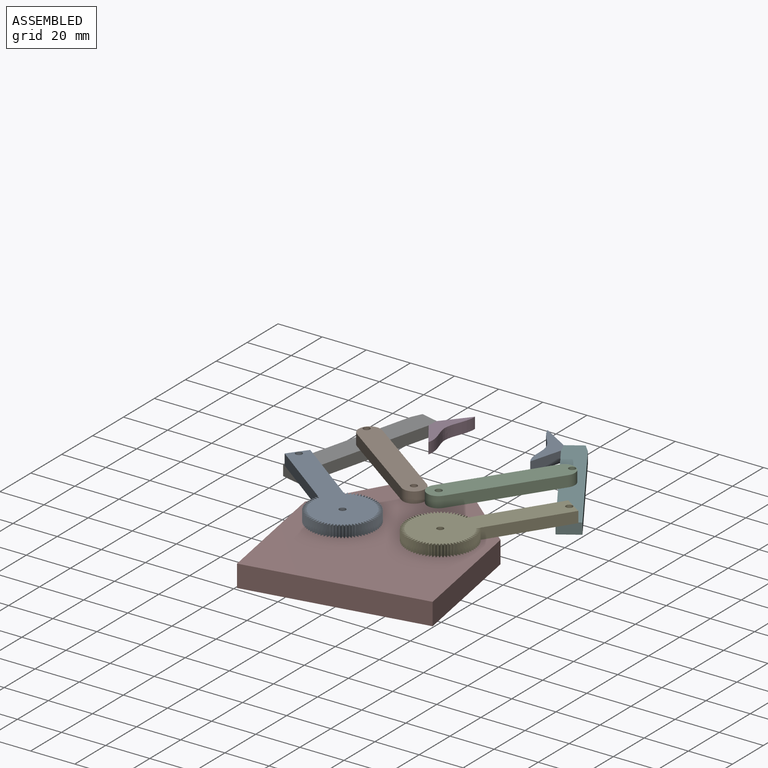
[diagram: assembled view]
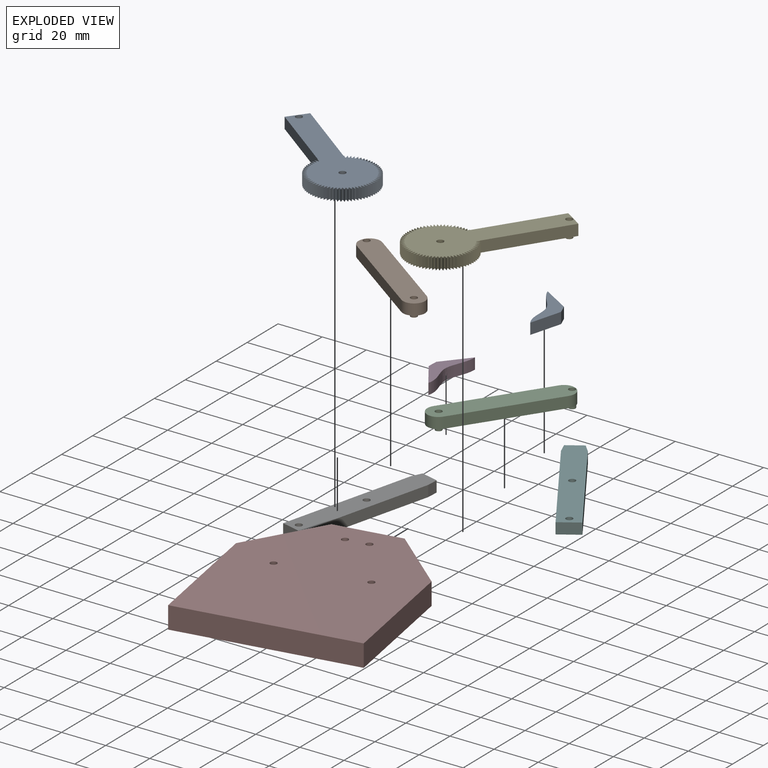
[diagram: exploded view]
GUIDED TOUR — MATED ASSEMBLY (Onshape document b8cc8984f2df4ca0f57b9fef, AutoMate assembly b8cc8984f2df4ca0f57b9fef_e9762321cf80885411d7167e_f863385ceeebe38cf76eb45a_default)

This assembly has 9 components, labeled P0..P8 below (a component is one placed occurrence of a part; the same part can appear more than once), held together by 10 mates. A mate is a constraint between two components; its type names the relative motion it leaves free:
  FASTENED — locks the two components together rigidly (no relative motion),
  REVOLUTE — leaves rotation about the listed axis free (a hinge).
Axis/direction vectors are unit vectors and 'through' points are millimeter coordinates, both in the assembly's world frame.

MATES
  1. REVOLUTE "Revolute 3": P2 <-> P7, axis (0.000, 0.000, -1.000) through (-61.34, 208.66, 22.83) mm
  2. REVOLUTE "Revolute 2": P8 <-> P7, axis (0.000, 0.000, -1.000) through (-81.00, 174.70, 22.83) mm
  3. FASTENED "Fastened 2": P3 <-> P6, direction (-0.999, 0.046, 0.000) through (-103.13, 264.54, 20.33) mm
  4. REVOLUTE "Revolute 4": P1 <-> P7, axis (0.000, 0.000, -1.000) through (-71.18, 206.90, 22.83) mm
  5. FASTENED "Fastened 1": P0 <-> P5, direction (0.928, 0.372, 0.000) through (-51.13, 274.42, 20.33) mm
  6. REVOLUTE "Revolute 8": P6 <-> P1, axis (0.000, 0.000, 1.000) through (-114.37, 237.97, 22.83) mm
  7. REVOLUTE "Revolute 6": P5 <-> P2, axis (0.000, 0.000, 1.000) through (-31.78, 253.03, 22.83) mm
  8. REVOLUTE "Revolute 7": P6 <-> P8, axis (0.000, 0.000, 1.000) through (-122.41, 205.61, 22.83) mm
  9. REVOLUTE "Revolute 5": P5 <-> P4, axis (0.000, 0.000, 1.000) through (-13.53, 225.12, 22.83) mm
  10. REVOLUTE "Revolute 1": P4 <-> P7, axis (0.000, 0.000, -1.000) through (-41.63, 181.76, 22.83) mm

ASSEMBLY ORDER
  1. P5 — the base component [order verified]
  2. P2 [order verified]
  3. P8 [order verified]
  4. P1 [order verified]
  5. P6 [order verified]
  6. P4 [order verified]
  7. P7 [order verified]
  8. P3 [order verified]
  9. P0 [order verified]
(P2, P6 verified with a relaxed clearance tolerance: the source model stores slight part interference there.)
Order-tag legend:
  [order verified] — this step's position reverses a verified removal order: the component was checked to insert without passing through the ones already placed.

Of the 9 components, 5 carry the full construction recipe — the FeatureScript program that regenerates the part's solid from scratch; the rest are supplied as boundary geometry only.
Each toured component is shown spotlighted twice — in the assembled view, then in the exploded view, where a leader line traces a displaced component back to its assembled socket (saturated green if recipe-attached, orange if geometry-only; every other component desaturated gray) — followed by its recipe or geometry summary and the mates that hold it.
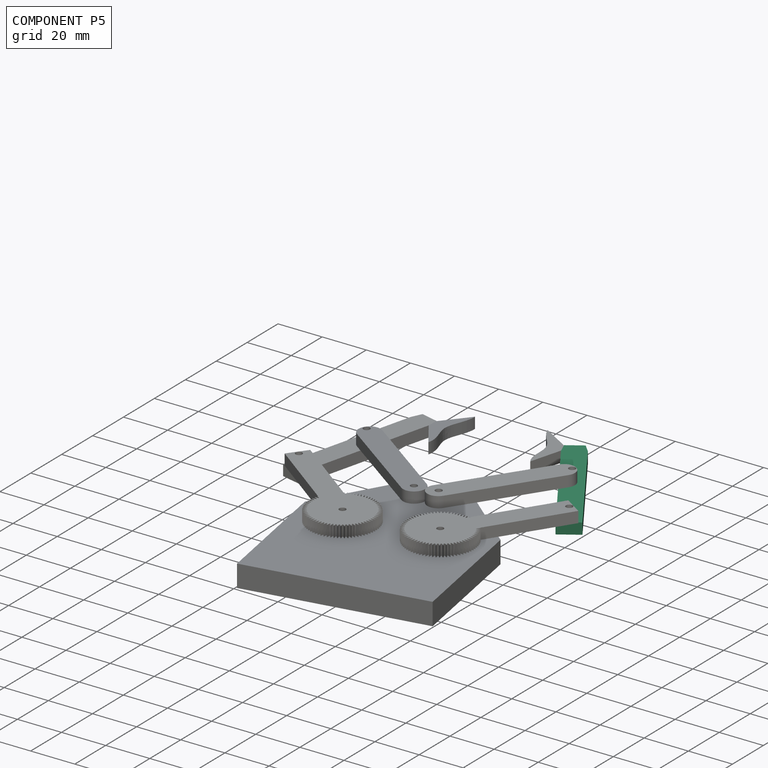
[diagram: component P5 — assembled]
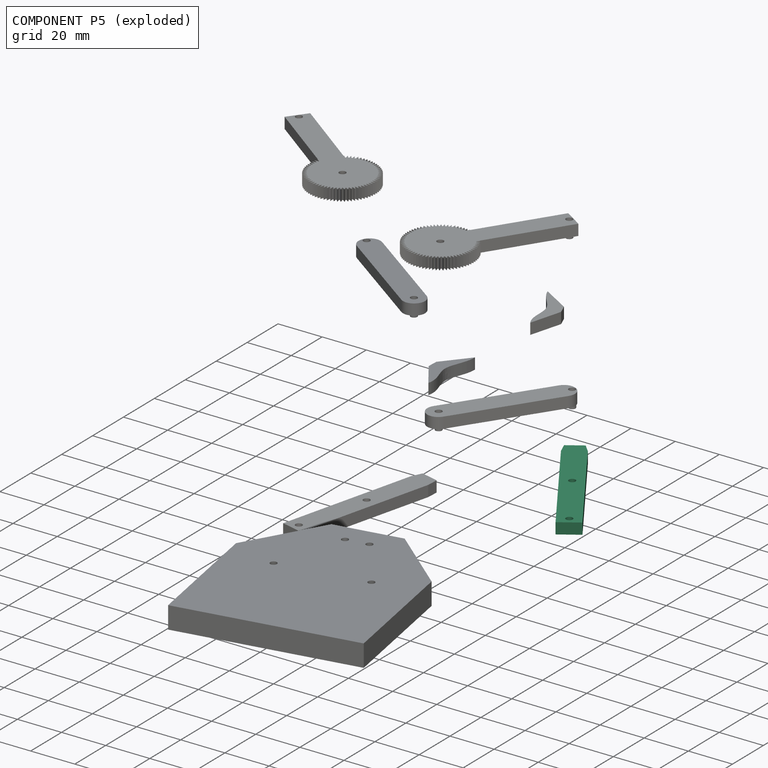
[diagram: component P5 — exploded]
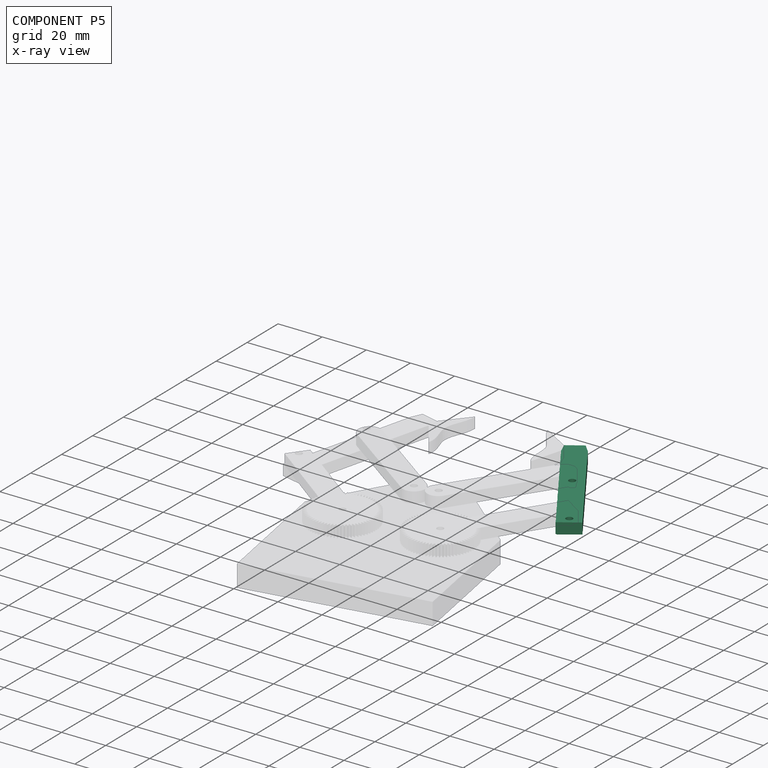
[diagram: component P5 — x-ray view]
COMPONENT P5 — recipe-attached (CADFS 00568122, mesh-verified: the recipe's output STEP matches this component's geometry to below the mesh-comparison resolution (tessellation chordal tolerance ~0.103 mm)).
Held by: FASTENED mate "Fastened 1" to P0; REVOLUTE mate "Revolute 6" to P2; REVOLUTE mate "Revolute 5" to P4.
Construction recipe (FeatureScript — the CAD program that rebuilds this solid; sketch coordinates are in the units given by the * unit suffixes, e.g. mm):

FeatureScript 1511;
import(path : "onshape/std/geometry.fs", version : "1511.0");
import(path : "onshape/std/common.fs", version : "1511.0");
const mm = millimeter;
const VERTEX = EntityType.VERTEX;
const EDGE = EntityType.EDGE;
const FACE = EntityType.FACE;
const BODY = EntityType.BODY;
function v(x, y){return vector(x, y);}
function OD(order){return orderDisambiguation(order);}
function OSD(set){return originalSetDisambiguation(set);}
function TD(topology){return topologyDisambiguation(topology);}
function TDD(query){return trueDependencyDisambiguation(query);}
function sQuery(a, b, c) {return sketchEntityQuery(a, b, c);}

annotation { "Feature Type Name" : "Feature", "Feature Type Description" : "" }
export const myFeature = defineFeature(function(context is Context, id is Id, definition is map)
    precondition{}
    {
        {
            var Q0;
            Q0=qCreatedBy(makeId("Top.planeOp"),FACE);
            var sketch = newSketch(context, id + "F0", { "sketchPlane" : qUnion([Q0])});
            skLineSegment(sketch, "E0.bottom", {"start": v(-44.61, 45.43) * mm, "end": v(-34.61, 45.43) * mm});
            skLineSegment(sketch, "E0.top", {"start": v(-44.61, -22.3) * mm, "end": v(-34.61, -22.3) * mm});
            skLineSegment(sketch, "E0.left", {"start": v(-44.61, 45.43) * mm, "end": v(-44.61, -22.3) * mm});
            skLineSegment(sketch, "E0.right", {"start": v(-34.61, 45.43) * mm, "end": v(-34.61, -22.3) * mm});
            skCircle(sketch, "E1", {"center": v(-39.61, -18.9) * mm, "radius": 1.5 * mm});
            skCircle(sketch, "E2", {"center": v(-39.61, 14.44) * mm, "radius": 1.5 * mm});
            skPoint(sketch, "E3", {"position": v(-39.61, -22.3) * mm});
            skSolve(sketch);
        }
        {
            var Q0;
            Q0 = qSketchRegion(id + "F0", true);
            extrude(context, id + "F1", {"entities" : qUnion([Q0]), "endBound" : BoundingType.SYMMETRIC, "depth" : 5 * mm, "offsetDistance" : 25 * mm});
        }
        {
            var Q0;
            Q0=makeQuery(id+"F1.opExtrude","SWEPT_EDGE",EDGE,{"disambiguationData":[OSD([sQuery(id+"F0.wireOp",EDGE,"E0.bottom"),sQuery(id+"F0.wireOp",EDGE,"E0.left")])]});
            var Q1;
            Q1=makeQuery(id+"F1.opExtrude","SWEPT_EDGE",EDGE,{"disambiguationData":[OSD([sQuery(id+"F0.wireOp",EDGE,"E0.bottom"),sQuery(id+"F0.wireOp",EDGE,"E0.right")])]});
            chamfer(context, id + "F2", {"entities" : qUnion([Q0, Q1]), "chamferType" : ChamferType.TWO_OFFSETS, "width1" : 5 * mm, "oppositeDirection" : false, "width2" : 1 * mm, "tangentPropagation" : true});
        }
    });
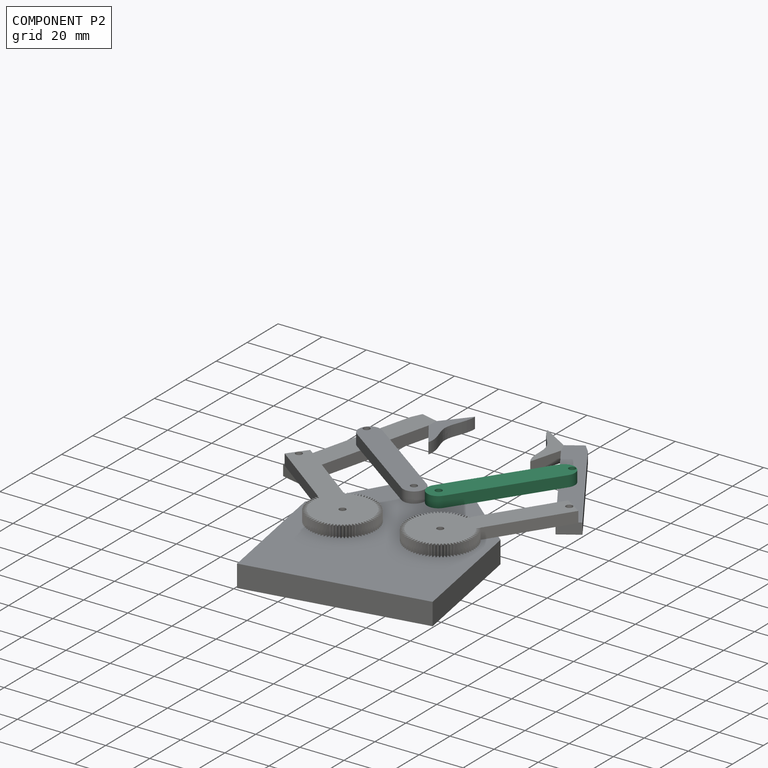
[diagram: component P2 — assembled]
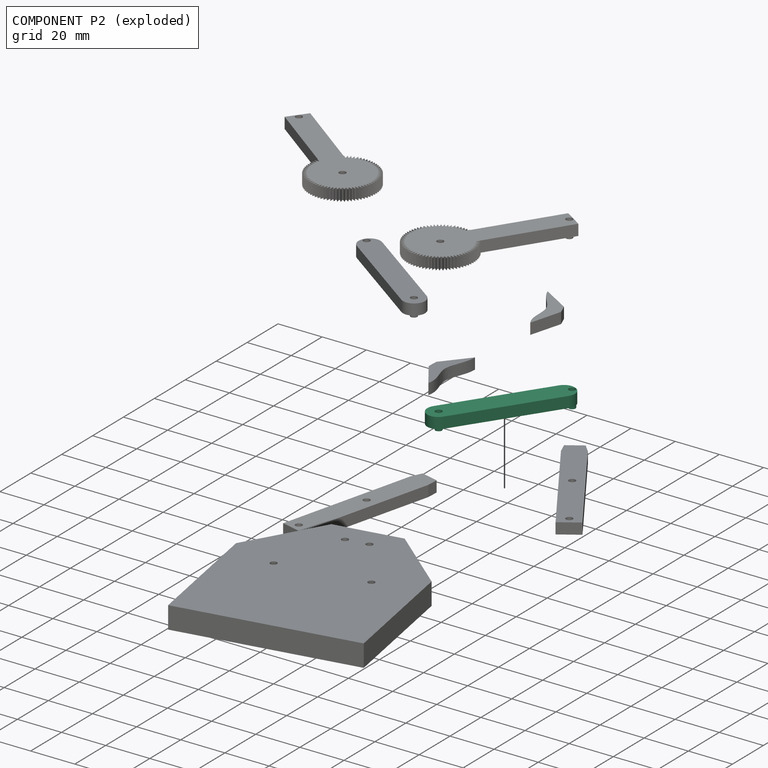
[diagram: component P2 — exploded]
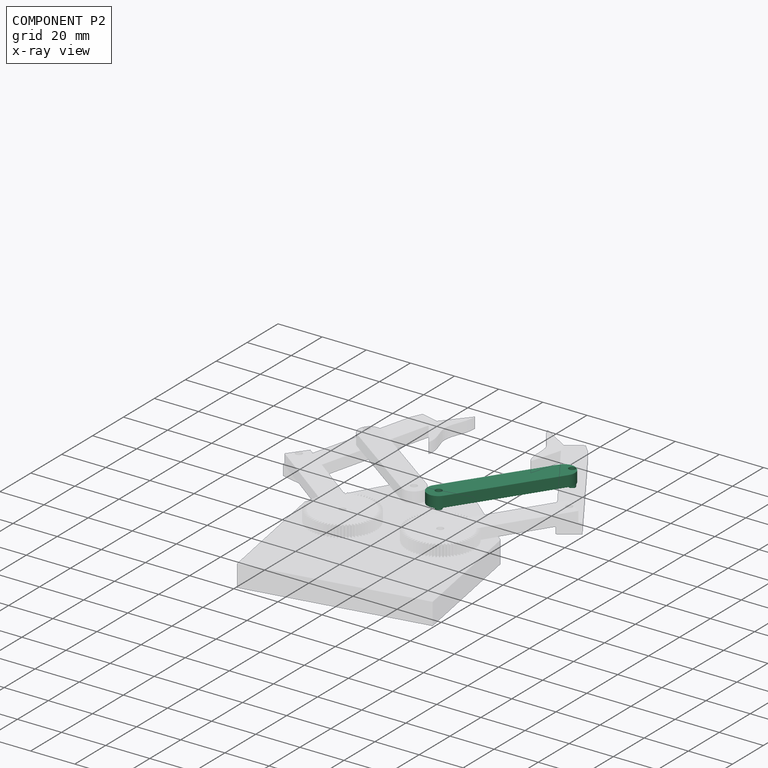
[diagram: component P2 — x-ray view]
COMPONENT P2 — same part as P1 (CADFS 00568123); its construction recipe is shown at P1.
Held by: REVOLUTE mate "Revolute 3" to P7; REVOLUTE mate "Revolute 6" to P5.
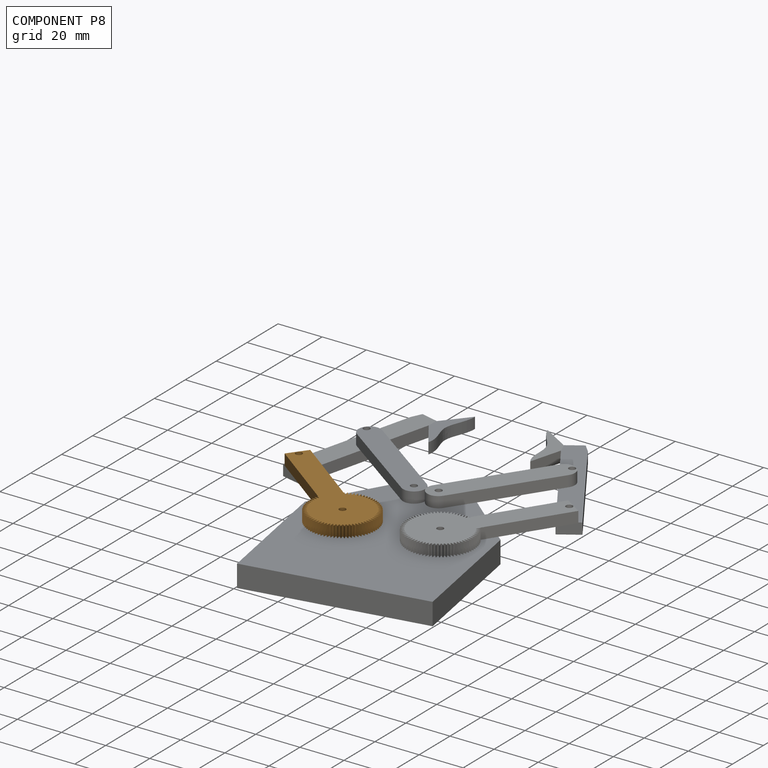
[diagram: component P8 — assembled]
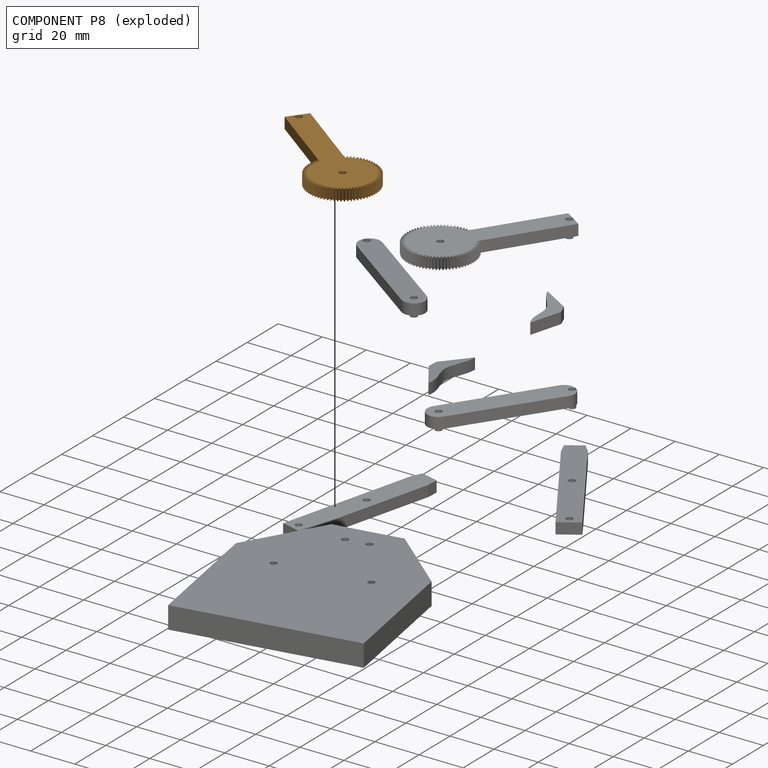
[diagram: component P8 — exploded]
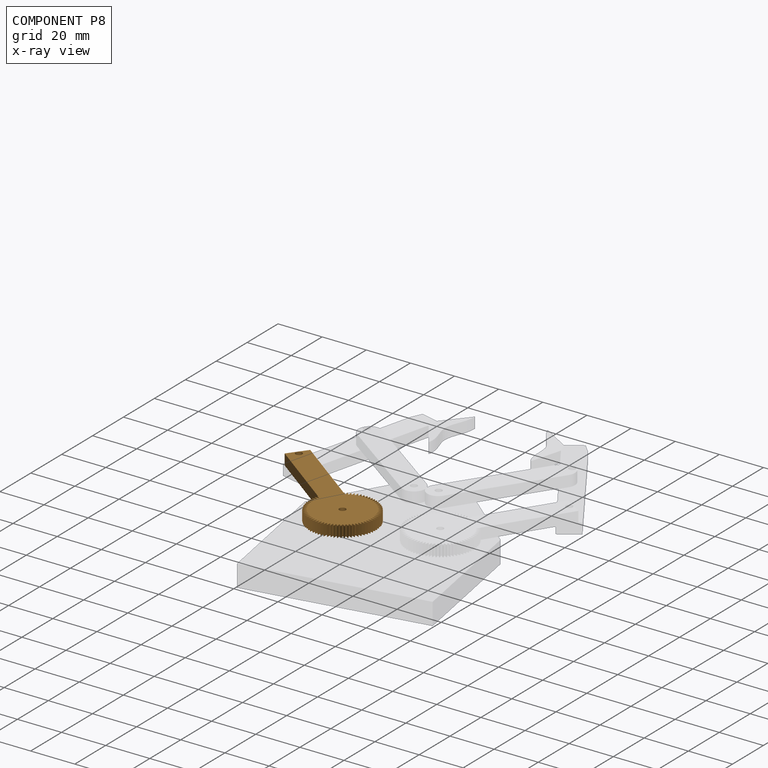
[diagram: component P8 — x-ray view]
COMPONENT P8 — geometry summary (no construction recipe available for this part):
  bounding box: 68.3 x 29.9 x 7.5 mm
  B-rep topology: 1 solid, 201 faces, 1170 edges
  volume: 5040 mm^3 (33% of its bounding box)
  symmetry: mirror-symmetric across its x mid-plane
Held by: REVOLUTE mate "Revolute 2" to P7; REVOLUTE mate "Revolute 7" to P6.
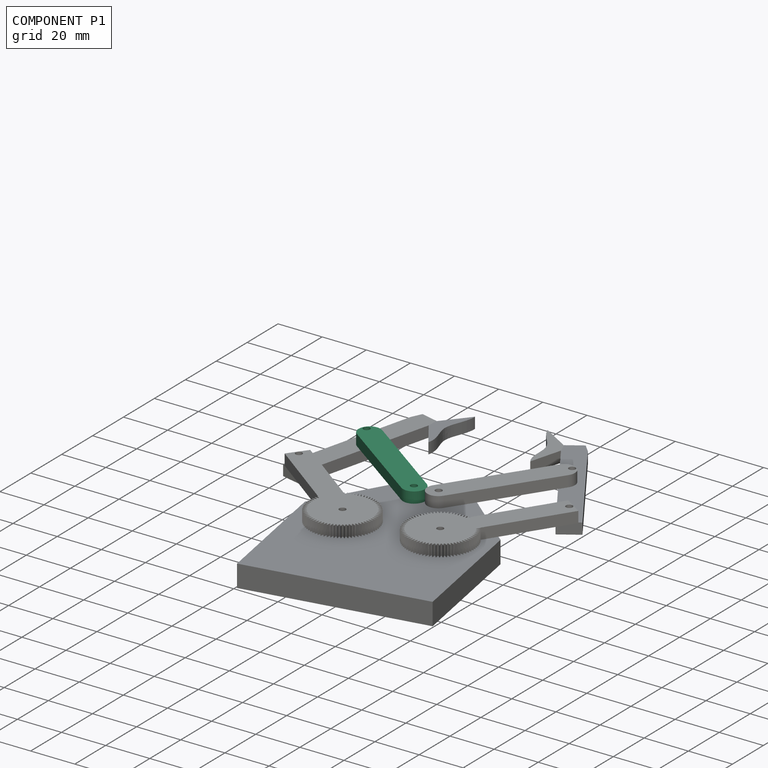
[diagram: component P1 — assembled]
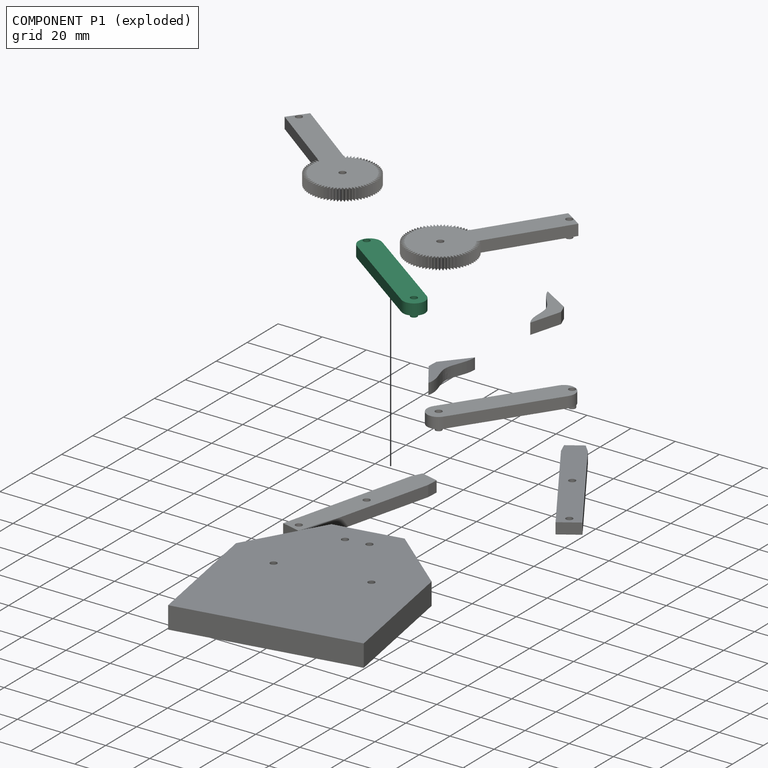
[diagram: component P1 — exploded]
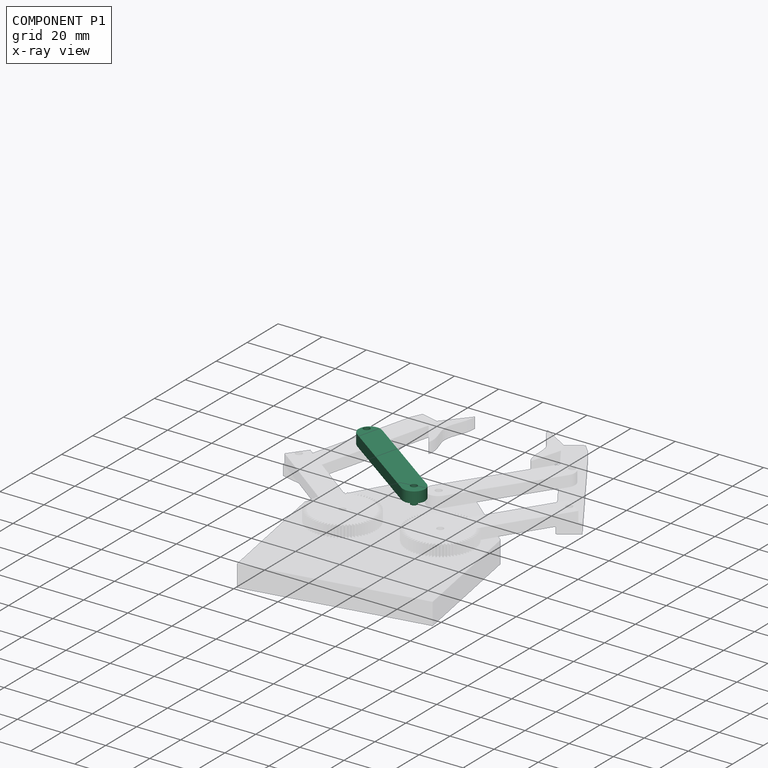
[diagram: component P1 — x-ray view]
COMPONENT P1 — recipe-attached (CADFS 00568123, mesh-verified: the recipe's output STEP matches this component's geometry to below the mesh-comparison resolution (tessellation chordal tolerance ~0.0919 mm)).
Held by: REVOLUTE mate "Revolute 4" to P7; REVOLUTE mate "Revolute 8" to P6.
Construction recipe (FeatureScript — the CAD program that rebuilds this solid; sketch coordinates are in the units given by the * unit suffixes, e.g. mm):

FeatureScript 1511;
import(path : "onshape/std/geometry.fs", version : "1511.0");
import(path : "onshape/std/common.fs", version : "1511.0");
const mm = millimeter;
const VERTEX = EntityType.VERTEX;
const EDGE = EntityType.EDGE;
const FACE = EntityType.FACE;
const BODY = EntityType.BODY;
function v(x, y){return vector(x, y);}
function OD(order){return orderDisambiguation(order);}
function OSD(set){return originalSetDisambiguation(set);}
function TD(topology){return topologyDisambiguation(topology);}
function TDD(query){return trueDependencyDisambiguation(query);}
function sQuery(a, b, c) {return sketchEntityQuery(a, b, c);}

annotation { "Feature Type Name" : "Feature", "Feature Type Description" : "" }
export const myFeature = defineFeature(function(context is Context, id is Id, definition is map)
    precondition{}
    {
        {
            var Q0;
            Q0=qCreatedBy(makeId("Top.planeOp"),FACE);
            var sketch = newSketch(context, id + "F0", { "sketchPlane" : qUnion([Q0])});
            skLineSegment(sketch, "E0.bottom", {"start": v(-37.8, 51) * mm, "end": v(-27.8, 51) * mm});
            skLineSegment(sketch, "E0.top", {"start": v(-37.8, -9) * mm, "end": v(-27.8, -9) * mm});
            skLineSegment(sketch, "E0.left", {"start": v(-37.8, 51) * mm, "end": v(-37.8, -9) * mm});
            skLineSegment(sketch, "E0.right", {"start": v(-27.8, 51) * mm, "end": v(-27.8, -9) * mm});
            skCircle(sketch, "E1", {"center": v(-32.8, 49.31) * mm, "radius": 1.5 * mm});
            skPoint(sketch, "E1.centerSnap0", {"position": v(-32.8, 51) * mm});
            skCircle(sketch, "E2", {"center": v(-32.8, -3.9) * mm, "radius": 1.5 * mm});
            skSolve(sketch);
        }
        {
            var Q0;
            Q0=makeQuery(id+"F0.imprint","IMPRINT",FACE,{"disambiguationData":[TD([[makeQuery(id+"F0.imprint","IMPRINT",EDGE,{"derivedFrom":sQuery(id+"F0.wireOp",EDGE,"E0.bottom")}),-1.0]])]});
            extrude(context, id + "F1", {"entities" : qUnion([Q0]), "endBound" : BoundingType.SYMMETRIC, "depth" : 5 * mm, "offsetDistance" : 25 * mm});
        }
        {
            var Q0;
            Q0=makeQuery(id+"F0.imprint","IMPRINT",FACE,{"disambiguationData":[TD([[makeQuery(id+"F0.imprint","IMPRINT",EDGE,{"derivedFrom":sQuery(id+"F0.wireOp",EDGE,"E1")}),1.0]])]});
            var Q1;
            Q1=makeQuery(id+"F0.imprint","IMPRINT",FACE,{"disambiguationData":[TD([[makeQuery(id+"F0.imprint","IMPRINT",EDGE,{"derivedFrom":sQuery(id+"F0.wireOp",EDGE,"E2")}),1.0]])]});
            extrude(context, id + "F2", {"entities" : qUnion([Q0, Q1]), "operationType" : NewBodyOperationType.ADD, "oppositeDirection" : true, "depth" : 5 * mm, "offsetDistance" : 25 * mm});
        }
        {
            var Q0;
            Q0=makeQuery(id+"F1.opExtrude","SWEPT_EDGE",EDGE,{"disambiguationData":[OSD([sQuery(id+"F0.wireOp",EDGE,"E0.bottom"),sQuery(id+"F0.wireOp",EDGE,"E0.right")])]});
            var Q1;
            Q1=makeQuery(id+"F1.opExtrude","SWEPT_EDGE",EDGE,{"disambiguationData":[OSD([sQuery(id+"F0.wireOp",EDGE,"E0.bottom"),sQuery(id+"F0.wireOp",EDGE,"E0.left")])]});
            var Q2;
            Q2=makeQuery(id+"F1.opExtrude","SWEPT_EDGE",EDGE,{"disambiguationData":[OSD([sQuery(id+"F0.wireOp",EDGE,"E0.top"),sQuery(id+"F0.wireOp",EDGE,"E0.right")])]});
            var Q3;
            Q3=makeQuery(id+"F1.opExtrude","SWEPT_EDGE",EDGE,{"disambiguationData":[OSD([sQuery(id+"F0.wireOp",EDGE,"E0.top"),sQuery(id+"F0.wireOp",EDGE,"E0.left")])]});
            fillet(context, id + "F3", {"entities" : qUnion([Q0, Q1, Q2, Q3]), "radius" : 5 * mm, "tangentPropagation" : true, "allowEdgeOverflow" : false});
        }
    });
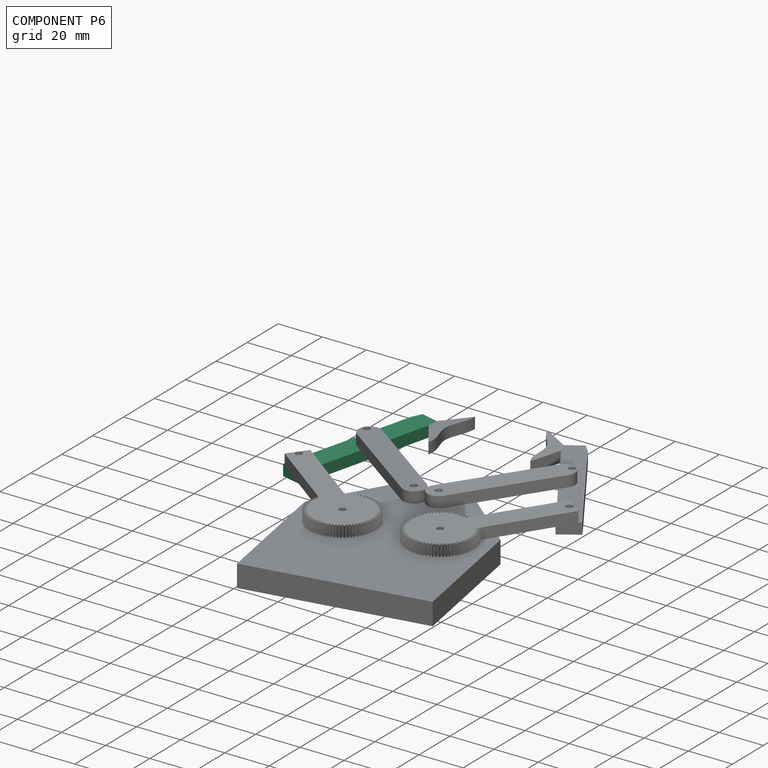
[diagram: component P6 — assembled]
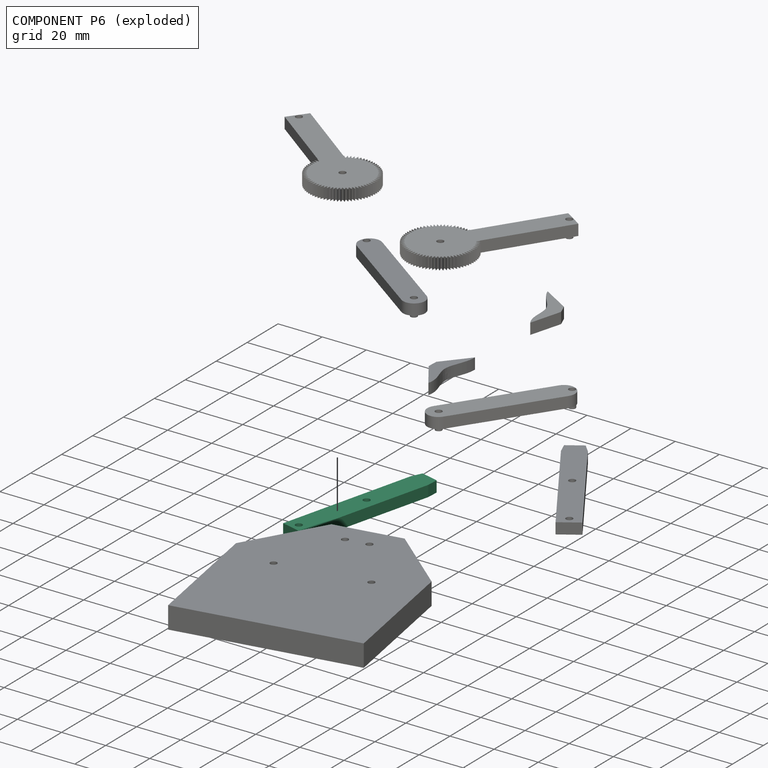
[diagram: component P6 — exploded]
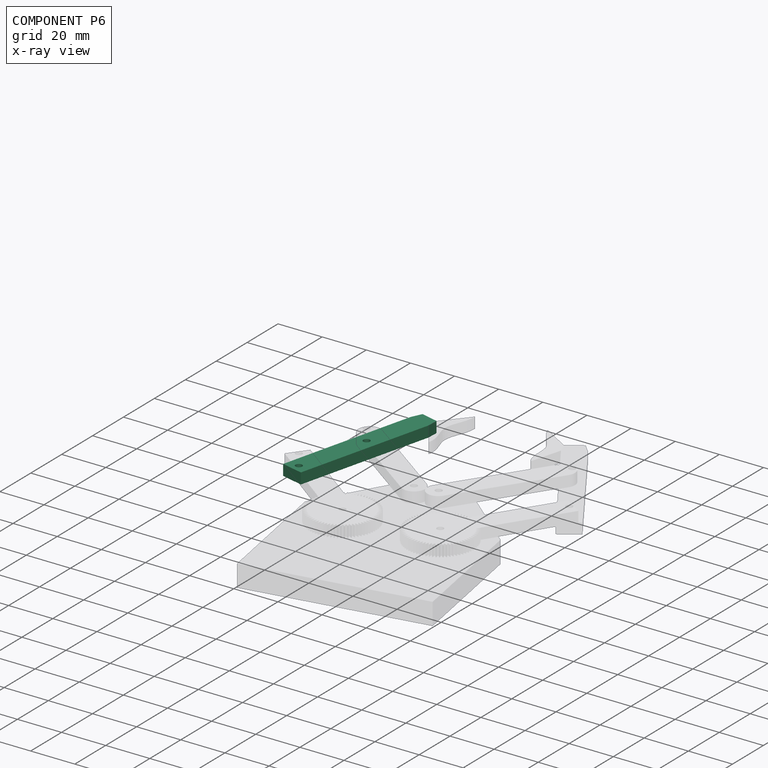
[diagram: component P6 — x-ray view]
COMPONENT P6 — same part as P5 (CADFS 00568122); its construction recipe is shown at P5.
Held by: FASTENED mate "Fastened 2" to P3; REVOLUTE mate "Revolute 8" to P1; REVOLUTE mate "Revolute 7" to P8.
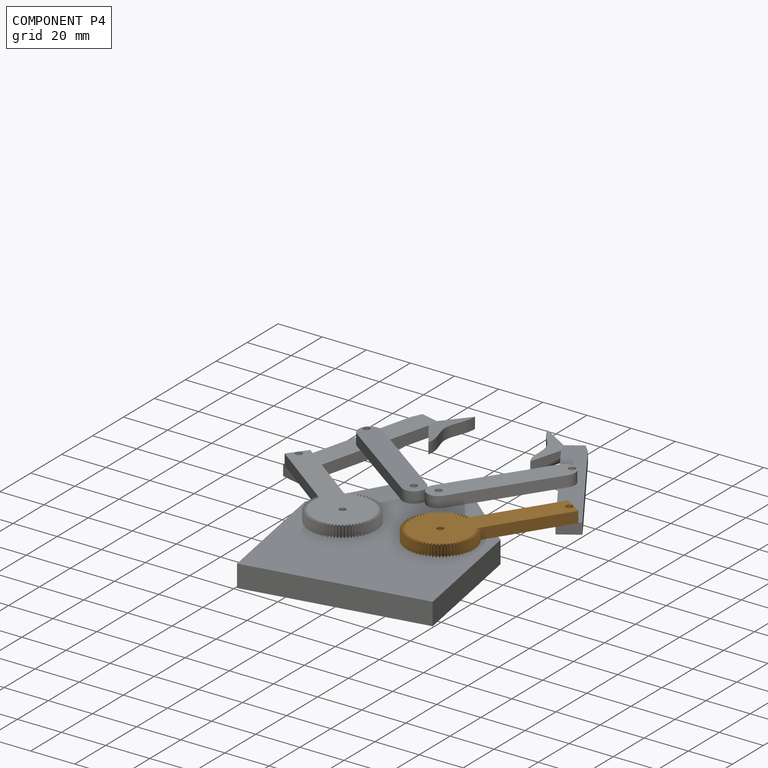
[diagram: component P4 — assembled]
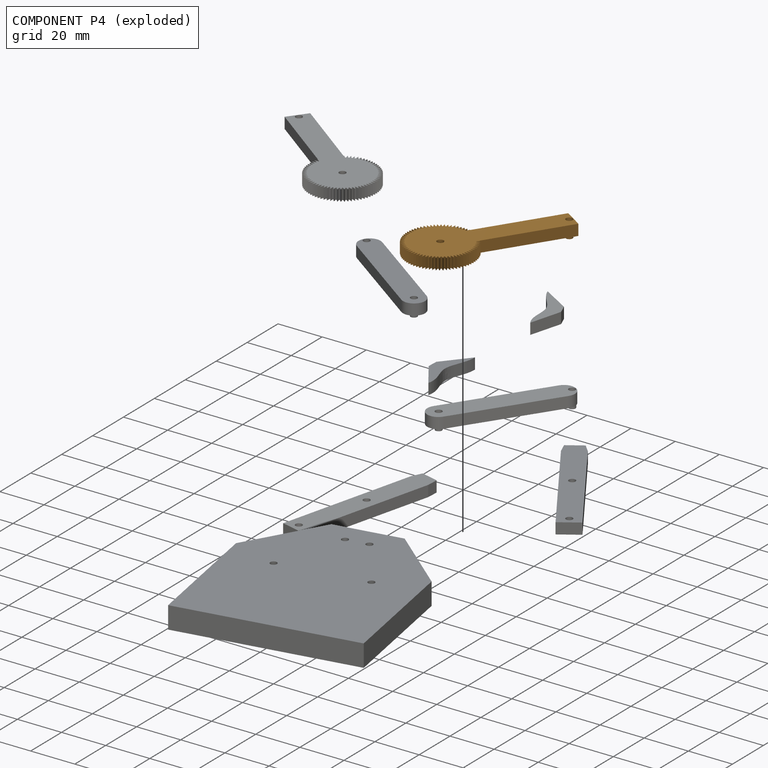
[diagram: component P4 — exploded]
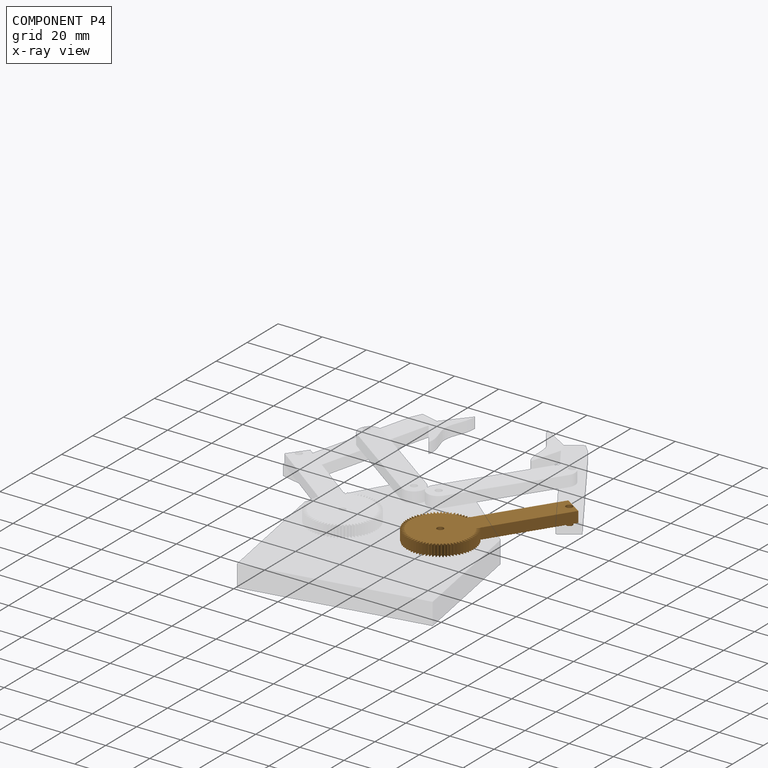
[diagram: component P4 — x-ray view]
COMPONENT P4 — geometry summary (no construction recipe available for this part):
  bounding box: 68.3 x 29.9 x 7.5 mm
  B-rep topology: 1 solid, 201 faces, 1170 edges
  volume: 5040 mm^3 (33% of its bounding box)
  symmetry: mirror-symmetric across its x mid-plane
Held by: REVOLUTE mate "Revolute 5" to P5; REVOLUTE mate "Revolute 1" to P7.
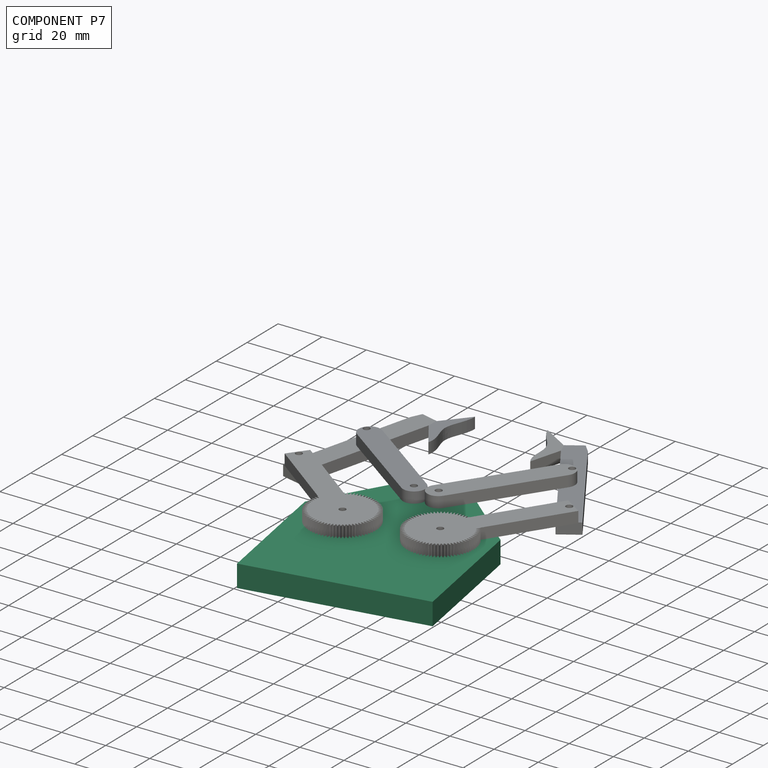
[diagram: component P7 — assembled]
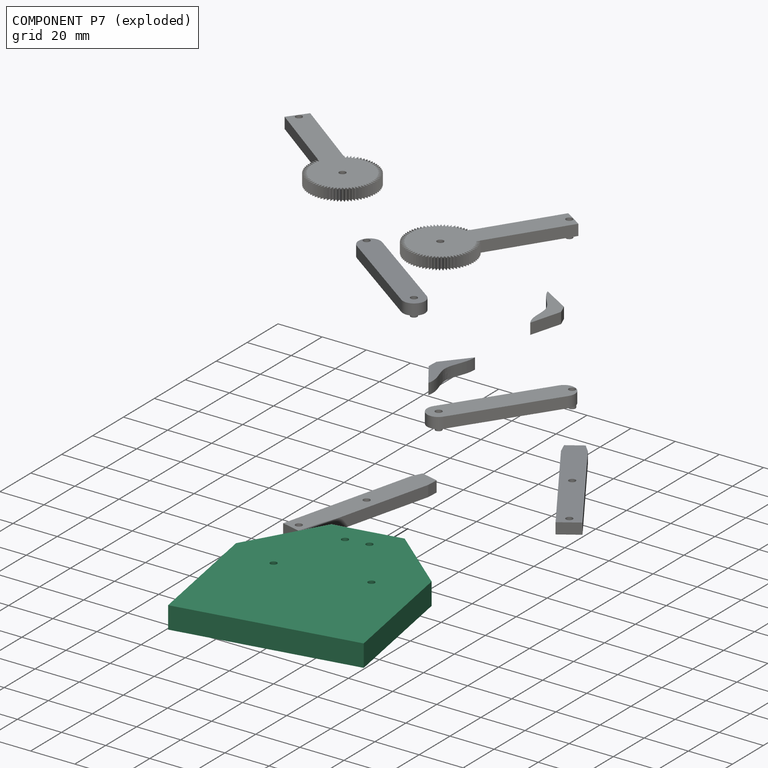
[diagram: component P7 — exploded]
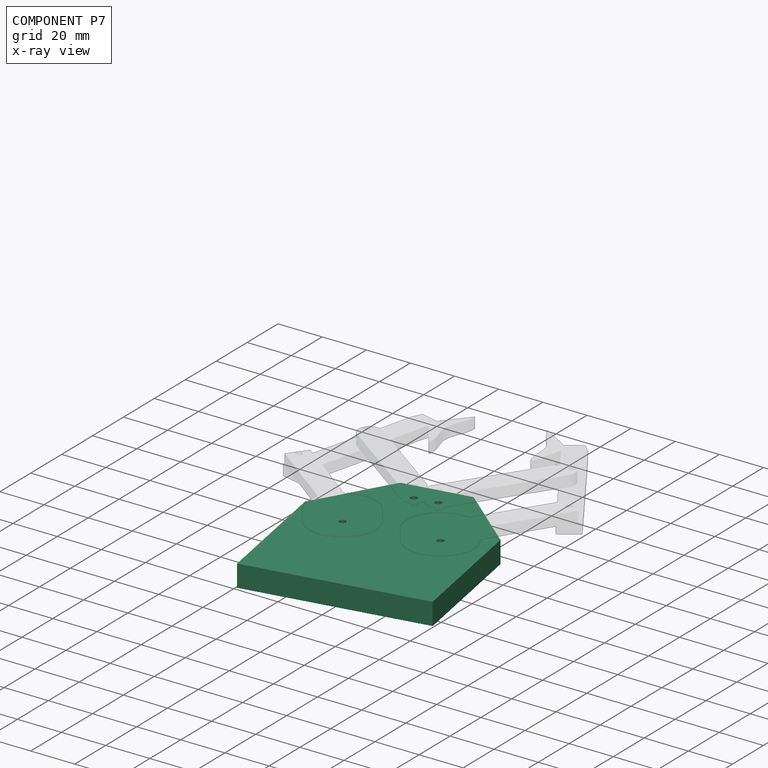
[diagram: component P7 — x-ray view]
COMPONENT P7 — recipe-attached (CADFS 00568121, mesh-verified: the recipe's output STEP matches this component's geometry to below the mesh-comparison resolution (tessellation chordal tolerance ~0.181 mm)).
Held by: REVOLUTE mate "Revolute 3" to P2; REVOLUTE mate "Revolute 2" to P8; REVOLUTE mate "Revolute 4" to P1; REVOLUTE mate "Revolute 1" to P4.
Construction recipe (FeatureScript — the CAD program that rebuilds this solid; sketch coordinates are in the units given by the * unit suffixes, e.g. mm):

FeatureScript 1511;
import(path : "onshape/std/geometry.fs", version : "1511.0");
import(path : "onshape/std/common.fs", version : "1511.0");
const mm = millimeter;
const VERTEX = EntityType.VERTEX;
const EDGE = EntityType.EDGE;
const FACE = EntityType.FACE;
const BODY = EntityType.BODY;
function v(x, y){return vector(x, y);}
function OD(order){return orderDisambiguation(order);}
function OSD(set){return originalSetDisambiguation(set);}
function TD(topology){return topologyDisambiguation(topology);}
function TDD(query){return trueDependencyDisambiguation(query);}
function sQuery(a, b, c) {return sketchEntityQuery(a, b, c);}

annotation { "Feature Type Name" : "Feature", "Feature Type Description" : "" }
export const myFeature = defineFeature(function(context is Context, id is Id, definition is map)
    precondition{}
    {
        {
            var Q0;
            Q0=qCreatedBy(makeId("Top.planeOp"),FACE);
            var sketch = newSketch(context, id + "F0", { "sketchPlane" : qUnion([Q0])});
            skLineSegment(sketch, "E0", {"start": v(-40.34, 6.79) * mm, "end": v(39.66, 6.79) * mm});
            skLineSegment(sketch, "E1", {"start": v(39.66, 6.79) * mm, "end": v(39.66, 66.79) * mm});
            skLineSegment(sketch, "E2", {"start": v(-40.34, 6.79) * mm, "end": v(-40.34, 66.79) * mm});
            skLineSegment(sketch, "E3", {"start": v(-15.22, 96.75) * mm, "end": v(14.78, 96.75) * mm});
            skLineSegment(sketch, "E4", {"start": v(0, 66.79) * mm, "end": v(0, 96.79) * mm, "construction": true});
            skLineSegment(sketch, "E5", {"start": v(-15.22, 96.75) * mm, "end": v(-40.34, 66.79) * mm});
            skLineSegment(sketch, "E6", {"start": v(14.78, 96.75) * mm, "end": v(39.66, 66.79) * mm});
            skCircle(sketch, "E7", {"center": v(-20.34, 56.79) * mm, "radius": 1.5 * mm});
            skCircle(sketch, "E8", {"center": v(19.66, 56.79) * mm, "radius": 1.5 * mm});
            skCircle(sketch, "E9", {"center": v(5, 86.75) * mm, "radius": 1.5 * mm});
            skCircle(sketch, "E10", {"center": v(-5, 86.75) * mm, "radius": 1.5 * mm});
            skSolve(sketch);
        }
        {
            var Q0;
            Q0 = qSketchRegion(id + "F0", true);
            extrude(context, id + "F1", {"entities" : qUnion([Q0]), "depth" : 10 * mm, "offsetDistance" : 25 * mm});
        }
    });
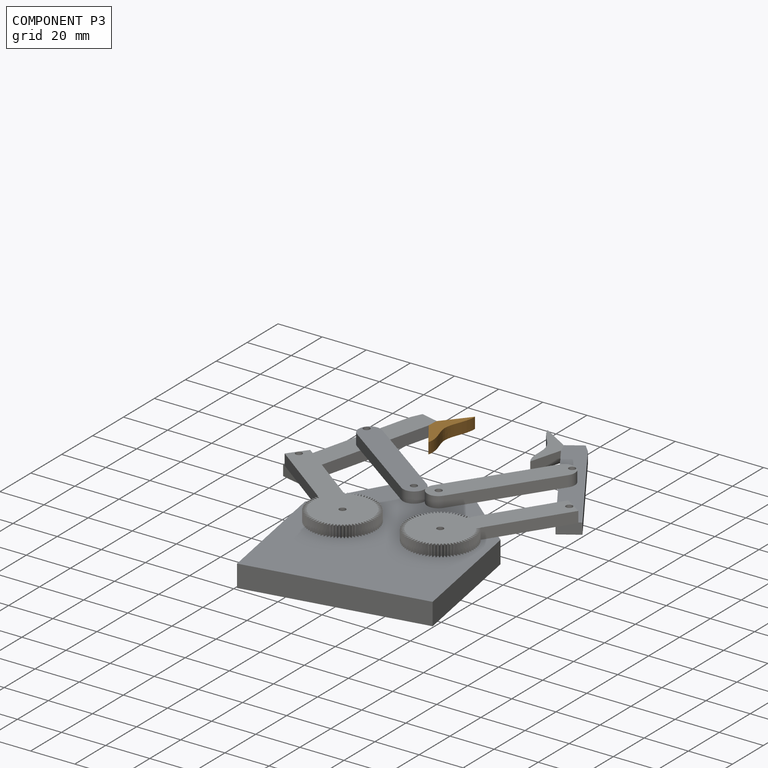
[diagram: component P3 — assembled]
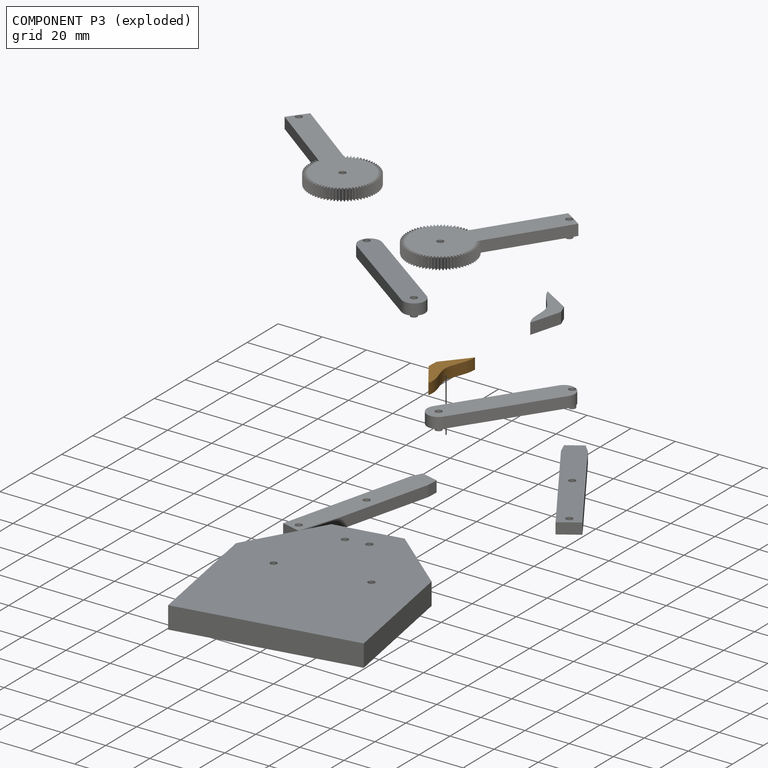
[diagram: component P3 — exploded]
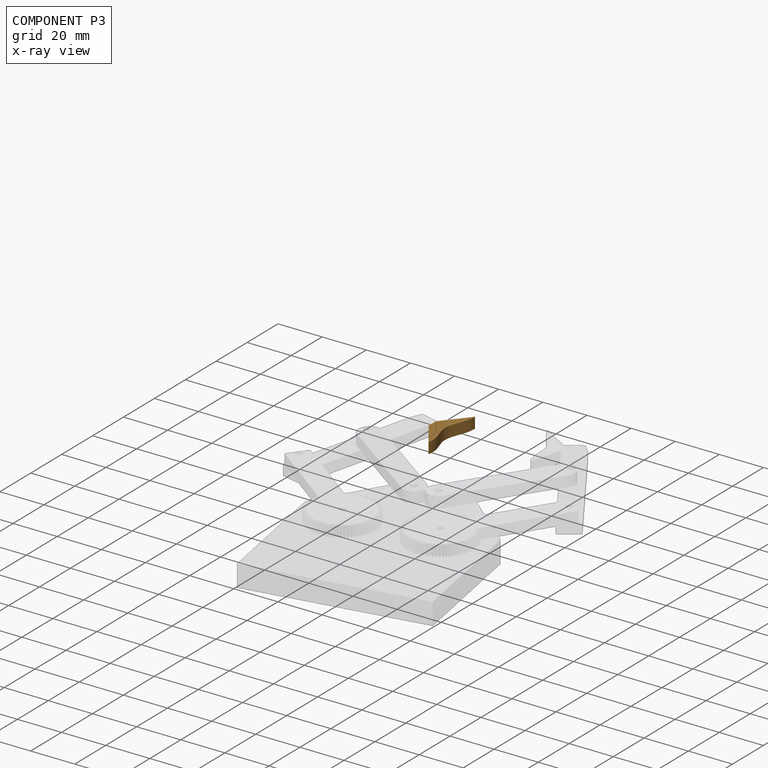
[diagram: component P3 — x-ray view]
COMPONENT P3 — geometry summary (no construction recipe available for this part):
  bounding box: 28.3 x 9.6 x 5.0 mm
  B-rep topology: 1 solid, 6 faces, 24 edges
  volume: 574 mm^3 (42% of its bounding box)
  symmetry: mirror-symmetric across its z mid-plane
Held by: FASTENED mate "Fastened 2" to P6.
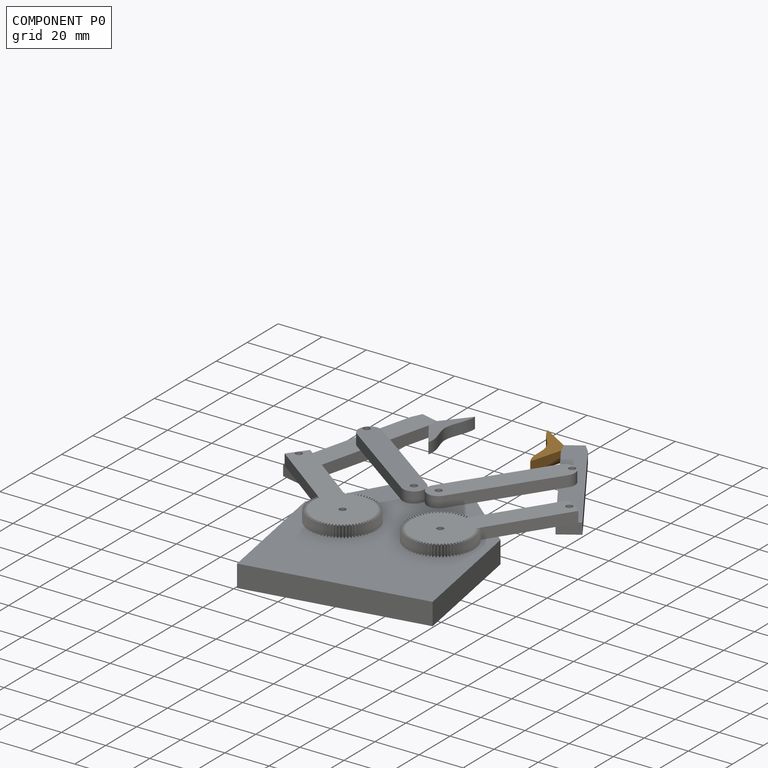
[diagram: component P0 — assembled]
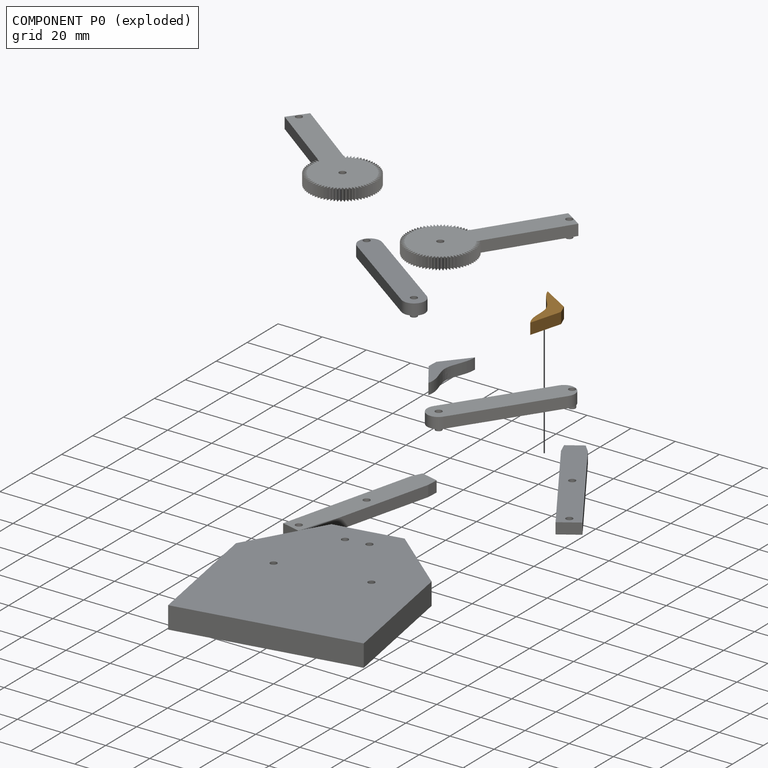
[diagram: component P0 — exploded]
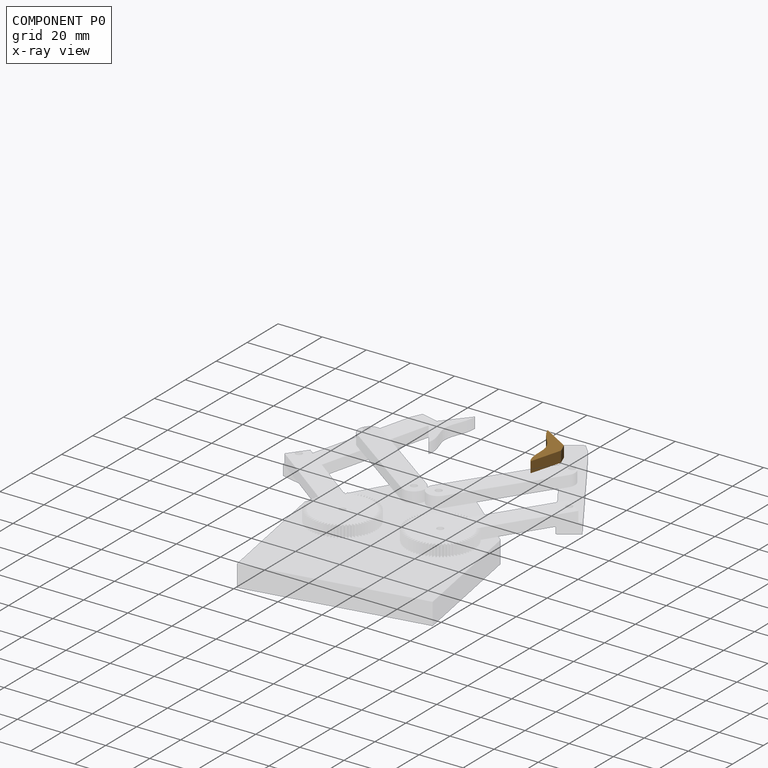
[diagram: component P0 — x-ray view]
COMPONENT P0 — geometry summary (no construction recipe available for this part):
  bounding box: 28.3 x 9.6 x 5.0 mm
  B-rep topology: 1 solid, 6 faces, 24 edges
  volume: 574 mm^3 (42% of its bounding box)
  symmetry: mirror-symmetric across its z mid-plane
Held by: FASTENED mate "Fastened 1" to P5.
PROVENANCE & LICENSES
Assembly (occurrences, transforms, mates, per-part STEP geometry): AutoMate dataset, Zenodo record 7776208, CC0.
Construction recipes: CADFS (HuggingFace VladPyatov/CADFS, CC-BY-4.0, layered over the ABC dataset), FeatureScript reconstruction programs keyed by ABC model id.
Join: ABC meta listings map ABC model id -> Onshape documentId; within a shared document, parts are matched by geometric signature (bounding-box dims + volume at 0.1% relative tolerance, exact B-rep face/solid counts).
Verification: 5 of this assembly's 9 components carry a recipe attachment, and every attachment is mesh-verified: the CADFS STEP and the AutoMate member STEP were compared as meshes in their shared local frame (symmetric sampled-point-to-mesh distance); worst across the 5 attachments: below the mesh-comparison resolution (tessellation chordal tolerance ~0.181 mm) on a 121 mm part.
Renders: orthographic iso camera (az 35 / el 25); the floor grid conveys scale (grid pitch printed in each image; no ruler). In the exploded view each component is displaced by its stored offset vector: the offsets alone carry the explosion direction (mate normal/axis signs are not orientation cues and do not encode it), and separation distances are assigned per mate-chain, not proportionally to assembly-order depth.
